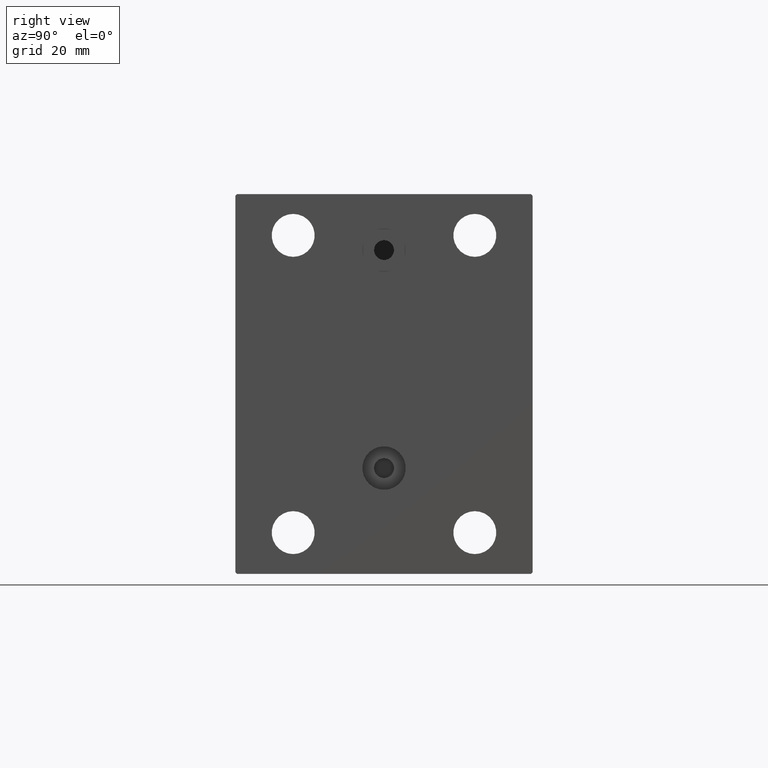
[diagram: clean part render]
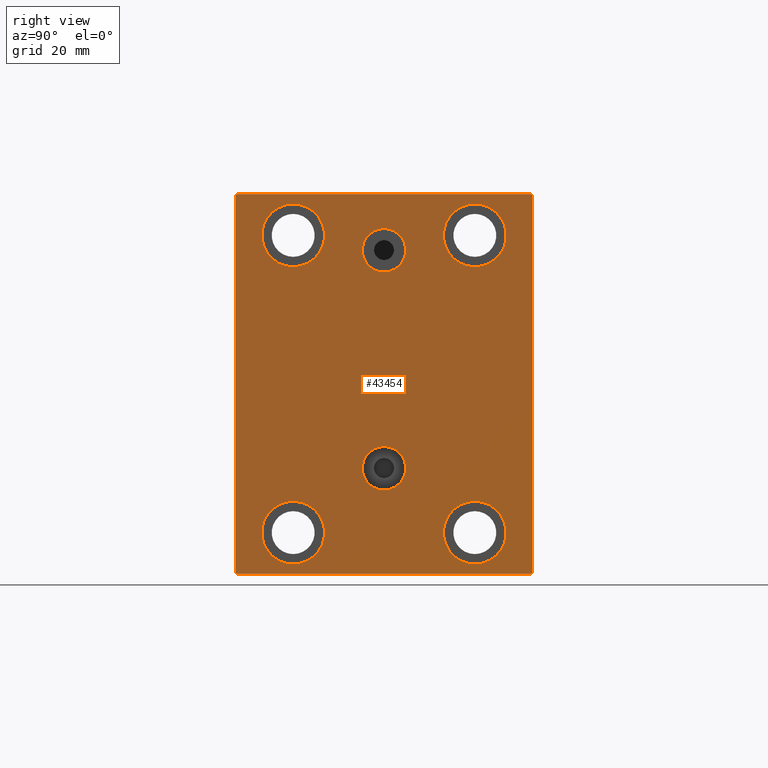
[diagram: same view with one face highlighted and labeled with its STEP entity id]
A machine part, right view. The second image highlights one B-rep face of the part: STEP entity #43454.
In plain terms, the highlighted planar face has unit normal (1, 0, 0).
Its self-contained STEP definition (entity closure, byte-faithful):
#456 = DIRECTION ( 'NONE',  ( 0.000000000000000000, -1.206764157201257045E-16, 1.000000000000000000 ) ) ;
#497 = DIRECTION ( 'NONE',  ( 0.000000000000000000, -1.000000000000000000, -1.541976423090495387E-16 ) ) ;
#570 = CARTESIAN_POINT ( 'NONE',  ( 108.0000000000000000, -27.49999999999998934, 54.50000000000000711 ) ) ;
#576 = DIRECTION ( 'NONE',  ( 0.000000000000000000, 0.000000000000000000, 1.000000000000000000 ) ) ;
#641 = ORIENTED_EDGE ( 'NONE', *, *, #44868, .F. ) ;
#645 = VERTEX_POINT ( 'NONE', #18208 ) ;
#753 = VERTEX_POINT ( 'NONE', #23050 ) ;
#895 = EDGE_LOOP ( 'NONE', ( #7942, #641 ) ) ;
#1068 = DIRECTION ( 'NONE',  ( 1.000000000000000000, 0.000000000000000000, 0.000000000000000000 ) ) ;
#1218 = DIRECTION ( 'NONE',  ( -1.000000000000000000, -0.000000000000000000, -0.000000000000000000 ) ) ;
#1299 = FACE_BOUND ( 'NONE', #39541, .T. ) ;
#1367 = CIRCLE ( 'NONE', #18997, 9.500000000000001776 ) ;
#1889 = DIRECTION ( 'NONE',  ( 0.000000000000000000, 0.000000000000000000, 1.000000000000000000 ) ) ;
#1948 = VECTOR ( 'NONE', #28390, 1000.000000000000114 ) ;
#1950 = EDGE_CURVE ( 'NONE', #645, #24250, #24117, .T. ) ;
#2202 = DIRECTION ( 'NONE',  ( 0.000000000000000000, 0.000000000000000000, 1.000000000000000000 ) ) ;
#2271 = DIRECTION ( 'NONE',  ( -1.000000000000000000, -0.000000000000000000, -0.000000000000000000 ) ) ;
#2356 = EDGE_CURVE ( 'NONE', #14809, #14537, #29507, .T. ) ;
#2551 = CARTESIAN_POINT ( 'NONE',  ( 108.0000000000000000, 51.00000000000001421, 51.00000000000001421 ) ) ;
#3495 = LINE ( 'NONE', #7863, #23795 ) ;
#4008 = EDGE_CURVE ( 'NONE', #39232, #33253, #9750, .T. ) ;
#5801 = CARTESIAN_POINT ( 'NONE',  ( 108.0000000000000000, 27.49999999999998934, -54.49999999999998579 ) ) ;
#5891 = EDGE_CURVE ( 'NONE', #33158, #7571, #42864, .T. ) ;
#5981 = CARTESIAN_POINT ( 'NONE',  ( 108.0000000000000000, 3.928666931664708475E-15, -18.91999999999999105 ) ) ;
#6065 = DIRECTION ( 'NONE',  ( -1.000000000000000000, -0.000000000000000000, -0.000000000000000000 ) ) ;
#6129 = CIRCLE ( 'NONE', #6837, 9.500000000000001776 ) ;
#6207 = VECTOR ( 'NONE', #38619, 1000.000000000000114 ) ;
#6417 = DIRECTION ( 'NONE',  ( 0.000000000000000000, 0.000000000000000000, 1.000000000000000000 ) ) ;
#6531 = ORIENTED_EDGE ( 'NONE', *, *, #44164, .T. ) ;
#6837 = AXIS2_PLACEMENT_3D ( 'NONE', #37485, #16975, #6417 ) ;
#6900 = AXIS2_PLACEMENT_3D ( 'NONE', #18918, #1218, #36639 ) ;
#7288 = CARTESIAN_POINT ( 'NONE',  ( 108.0000000000000000, -4.500599556835684736E-15, 47.08000000000001251 ) ) ;
#7292 = DIRECTION ( 'NONE',  ( -1.000000000000000000, -0.000000000000000000, -0.000000000000000000 ) ) ;
#7571 = VERTEX_POINT ( 'NONE', #19857 ) ;
#7605 = EDGE_CURVE ( 'NONE', #36578, #24544, #3495, .T. ) ;
#7863 = CARTESIAN_POINT ( 'NONE',  ( 108.0000000000000000, 45.00000000000000000, 57.50000000000000711 ) ) ;
#7942 = ORIENTED_EDGE ( 'NONE', *, *, #2356, .F. ) ;
#8022 = AXIS2_PLACEMENT_3D ( 'NONE', #27954, #24292, #20828 ) ;
#8201 = CARTESIAN_POINT ( 'NONE',  ( 108.0000000000000000, 27.49999999999998934, -35.49999999999998579 ) ) ;
#8974 = ORIENTED_EDGE ( 'NONE', *, *, #18144, .T. ) ;
#9279 = LINE ( 'NONE', #44008, #13556 ) ;
#9361 = EDGE_CURVE ( 'NONE', #753, #42917, #23690, .T. ) ;
#9588 = CARTESIAN_POINT ( 'NONE',  ( 108.0000000000000000, 3.122849337825749828E-15, -25.49999999999999645 ) ) ;
#9750 = CIRCLE ( 'NONE', #31754, 9.500000000000001776 ) ;
#9950 = ORIENTED_EDGE ( 'NONE', *, *, #10577, .T. ) ;
#10434 = ORIENTED_EDGE ( 'NONE', *, *, #43075, .T. ) ;
#10544 = CARTESIAN_POINT ( 'NONE',  ( 108.0000000000000000, 51.00000000000001421, -51.00000000000001421 ) ) ;
#10577 = EDGE_CURVE ( 'NONE', #10808, #28229, #18591, .T. ) ;
#10645 = ORIENTED_EDGE ( 'NONE', *, *, #24798, .T. ) ;
#10808 = VERTEX_POINT ( 'NONE', #15490 ) ;
#11245 = LINE ( 'NONE', #36344, #34201 ) ;
#11402 = FACE_BOUND ( 'NONE', #37550, .T. ) ;
#11639 = DIRECTION ( 'NONE',  ( 0.000000000000000000, 0.000000000000000000, 1.000000000000000000 ) ) ;
#11698 = DIRECTION ( 'NONE',  ( -1.000000000000000000, -0.000000000000000000, -0.000000000000000000 ) ) ;
#12011 = CARTESIAN_POINT ( 'NONE',  ( 108.0000000000000000, 45.00000000000001421, -57.00000000000003553 ) ) ;
#12089 = FACE_OUTER_BOUND ( 'NONE', #16557, .T. ) ;
#12471 = CARTESIAN_POINT ( 'NONE',  ( 108.0000000000000000, 27.50000000000001066, 54.50000000000000711 ) ) ;
#12891 = ORIENTED_EDGE ( 'NONE', *, *, #16455, .T. ) ;
#13036 = VERTEX_POINT ( 'NONE', #43703 ) ;
#13067 = DIRECTION ( 'NONE',  ( 1.000000000000000000, 0.000000000000000000, 0.000000000000000000 ) ) ;
#13155 = DIRECTION ( 'NONE',  ( -0.000000000000000000, 0.7071067811865474617, -0.7071067811865474617 ) ) ;
#13350 = VECTOR ( 'NONE', #20648, 1000.000000000000000 ) ;
#13361 = EDGE_LOOP ( 'NONE', ( #40869, #43401 ) ) ;
#13419 = CARTESIAN_POINT ( 'NONE',  ( 108.0000000000000000, -45.00000000000000000, -57.00000000000003553 ) ) ;
#13556 = VECTOR ( 'NONE', #13155, 1000.000000000000114 ) ;
#14537 = VERTEX_POINT ( 'NONE', #5981 ) ;
#14690 = CARTESIAN_POINT ( 'NONE',  ( 108.0000000000000000, 27.49999999999998934, -44.99999999999998579 ) ) ;
#14767 = ORIENTED_EDGE ( 'NONE', *, *, #45148, .F. ) ;
#14809 = VERTEX_POINT ( 'NONE', #41553 ) ;
#14930 = ORIENTED_EDGE ( 'NONE', *, *, #7605, .T. ) ;
#15490 = CARTESIAN_POINT ( 'NONE',  ( 108.0000000000000000, -27.50000000000000000, -35.49999999999998579 ) ) ;
#15539 = FACE_BOUND ( 'NONE', #13361, .T. ) ;
#15662 = CARTESIAN_POINT ( 'NONE',  ( 108.0000000000000000, 3.122849337825749828E-15, -25.49999999999999645 ) ) ;
#16157 = DIRECTION ( 'NONE',  ( 0.000000000000000000, 0.000000000000000000, -1.000000000000000000 ) ) ;
#16455 = EDGE_CURVE ( 'NONE', #33253, #39232, #23921, .T. ) ;
#16494 = AXIS2_PLACEMENT_3D ( 'NONE', #39255, #1068, #40176 ) ;
#16557 = EDGE_LOOP ( 'NONE', ( #14930, #8974, #40044, #10434, #40667, #38915, #19902, #6531 ) ) ;
#16975 = DIRECTION ( 'NONE',  ( -1.000000000000000000, -0.000000000000000000, -0.000000000000000000 ) ) ;
#17201 = CIRCLE ( 'NONE', #6900, 9.500000000000001776 ) ;
#17357 = EDGE_CURVE ( 'NONE', #42917, #13036, #11245, .T. ) ;
#18144 = EDGE_CURVE ( 'NONE', #24544, #645, #36225, .T. ) ;
#18208 = CARTESIAN_POINT ( 'NONE',  ( 108.0000000000000000, -45.00000000000000000, 56.99999999999999289 ) ) ;
#18237 = VERTEX_POINT ( 'NONE', #23338 ) ;
#18591 = CIRCLE ( 'NONE', #39189, 9.500000000000001776 ) ;
#18742 = CARTESIAN_POINT ( 'NONE',  ( 108.0000000000000000, -51.00000000000000000, 51.00000000000000000 ) ) ;
#18918 = CARTESIAN_POINT ( 'NONE',  ( 108.0000000000000000, -27.49999999999998934, 45.00000000000000711 ) ) ;
#18997 = AXIS2_PLACEMENT_3D ( 'NONE', #37163, #29803, #2202 ) ;
#19285 = CARTESIAN_POINT ( 'NONE',  ( 108.0000000000000000, -5.306417150674643778E-15, 40.50000000000000711 ) ) ;
#19483 = AXIS2_PLACEMENT_3D ( 'NONE', #19285, #13067, #33559 ) ;
#19580 = DIRECTION ( 'NONE',  ( 1.000000000000000000, 0.000000000000000000, -0.000000000000000000 ) ) ;
#19688 = AXIS2_PLACEMENT_3D ( 'NONE', #33893, #6065, #31108 ) ;
#19744 = CARTESIAN_POINT ( 'NONE',  ( 108.0000000000000000, 27.49999999999998934, -44.99999999999998579 ) ) ;
#19857 = CARTESIAN_POINT ( 'NONE',  ( 108.0000000000000000, -5.306417150674643778E-15, 33.92000000000000881 ) ) ;
#19902 = ORIENTED_EDGE ( 'NONE', *, *, #17357, .T. ) ;
#20014 = LINE ( 'NONE', #2551, #24594 ) ;
#20434 = ORIENTED_EDGE ( 'NONE', *, *, #4008, .T. ) ;
#20648 = DIRECTION ( 'NONE',  ( 0.000000000000000000, 0.000000000000000000, -1.000000000000000000 ) ) ;
#20828 = DIRECTION ( 'NONE',  ( 0.000000000000000000, 0.000000000000000000, 1.000000000000000000 ) ) ;
#20896 = EDGE_CURVE ( 'NONE', #18237, #753, #23197, .T. ) ;
#21371 = EDGE_LOOP ( 'NONE', ( #10645, #9950 ) ) ;
#21961 = DIRECTION ( 'NONE',  ( 1.000000000000000000, 0.000000000000000000, -0.000000000000000000 ) ) ;
#22220 = EDGE_CURVE ( 'NONE', #45283, #38988, #39520, .T. ) ;
#23050 = CARTESIAN_POINT ( 'NONE',  ( 108.0000000000000000, 44.50000000000001421, -57.50000000000000711 ) ) ;
#23197 = LINE ( 'NONE', #37224, #34299 ) ;
#23338 = CARTESIAN_POINT ( 'NONE',  ( 108.0000000000000000, -44.50000000000002842, -57.50000000000000711 ) ) ;
#23690 = LINE ( 'NONE', #10544, #6207 ) ;
#23795 = VECTOR ( 'NONE', #497, 1000.000000000000000 ) ;
#23921 = CIRCLE ( 'NONE', #34911, 9.500000000000001776 ) ;
#24117 = LINE ( 'NONE', #45280, #13350 ) ;
#24250 = VERTEX_POINT ( 'NONE', #13419 ) ;
#24292 = DIRECTION ( 'NONE',  ( -1.000000000000000000, -0.000000000000000000, -0.000000000000000000 ) ) ;
#24521 = CARTESIAN_POINT ( 'NONE',  ( 108.0000000000000000, -44.49999999999997158, 57.49999999999999289 ) ) ;
#24544 = VERTEX_POINT ( 'NONE', #24521 ) ;
#24594 = VECTOR ( 'NONE', #40062, 1000.000000000000114 ) ;
#24798 = EDGE_CURVE ( 'NONE', #28229, #10808, #1367, .T. ) ;
#25219 = FACE_BOUND ( 'NONE', #21371, .T. ) ;
#25674 = FACE_BOUND ( 'NONE', #895, .T. ) ;
#26097 = CIRCLE ( 'NONE', #40816, 6.580000000000002736 ) ;
#26140 = PLANE ( 'NONE',  #16494 ) ;
#26427 = DIRECTION ( 'NONE',  ( 0.000000000000000000, 0.000000000000000000, 1.000000000000000000 ) ) ;
#27767 = CARTESIAN_POINT ( 'NONE',  ( 108.0000000000000000, -27.49999999999998934, 35.50000000000000711 ) ) ;
#27954 = CARTESIAN_POINT ( 'NONE',  ( 108.0000000000000000, 27.50000000000001066, 45.00000000000000711 ) ) ;
#28229 = VERTEX_POINT ( 'NONE', #33360 ) ;
#28258 = CIRCLE ( 'NONE', #19483, 6.580000000000002736 ) ;
#28390 = DIRECTION ( 'NONE',  ( 0.000000000000000000, -0.7071067811865474617, -0.7071067811865474617 ) ) ;
#29507 = CIRCLE ( 'NONE', #34665, 6.580000000000002736 ) ;
#29803 = DIRECTION ( 'NONE',  ( -1.000000000000000000, -0.000000000000000000, -0.000000000000000000 ) ) ;
#30022 = EDGE_CURVE ( 'NONE', #43073, #30519, #43295, .T. ) ;
#30519 = VERTEX_POINT ( 'NONE', #44854 ) ;
#31108 = DIRECTION ( 'NONE',  ( 0.000000000000000000, 0.000000000000000000, 1.000000000000000000 ) ) ;
#31754 = AXIS2_PLACEMENT_3D ( 'NONE', #19744, #2271, #26427 ) ;
#31826 = AXIS2_PLACEMENT_3D ( 'NONE', #41446, #37105, #16157 ) ;
#32684 = ORIENTED_EDGE ( 'NONE', *, *, #39624, .T. ) ;
#33158 = VERTEX_POINT ( 'NONE', #7288 ) ;
#33253 = VERTEX_POINT ( 'NONE', #8201 ) ;
#33360 = CARTESIAN_POINT ( 'NONE',  ( 108.0000000000000000, -27.50000000000000000, -54.49999999999998579 ) ) ;
#33559 = DIRECTION ( 'NONE',  ( 0.000000000000000000, 0.000000000000000000, -1.000000000000000000 ) ) ;
#33766 = DIRECTION ( 'NONE',  ( 0.000000000000000000, 1.000000000000000000, 0.000000000000000000 ) ) ;
#33893 = CARTESIAN_POINT ( 'NONE',  ( 108.0000000000000000, -27.49999999999998934, 45.00000000000000711 ) ) ;
#34201 = VECTOR ( 'NONE', #456, 1000.000000000000000 ) ;
#34299 = VECTOR ( 'NONE', #33766, 1000.000000000000000 ) ;
#34665 = AXIS2_PLACEMENT_3D ( 'NONE', #9588, #21961, #576 ) ;
#34911 = AXIS2_PLACEMENT_3D ( 'NONE', #14690, #11698, #43458 ) ;
#35731 = CARTESIAN_POINT ( 'NONE',  ( 108.0000000000000000, 44.50000000000002842, 57.50000000000000711 ) ) ;
#36225 = LINE ( 'NONE', #18742, #1948 ) ;
#36344 = CARTESIAN_POINT ( 'NONE',  ( 108.0000000000000000, 45.00000000000001421, -57.50000000000000711 ) ) ;
#36524 = ORIENTED_EDGE ( 'NONE', *, *, #30022, .T. ) ;
#36578 = VERTEX_POINT ( 'NONE', #35731 ) ;
#36639 = DIRECTION ( 'NONE',  ( 0.000000000000000000, 0.000000000000000000, 1.000000000000000000 ) ) ;
#37105 = DIRECTION ( 'NONE',  ( 1.000000000000000000, 0.000000000000000000, 0.000000000000000000 ) ) ;
#37163 = CARTESIAN_POINT ( 'NONE',  ( 108.0000000000000000, -27.50000000000000000, -44.99999999999998579 ) ) ;
#37224 = CARTESIAN_POINT ( 'NONE',  ( 108.0000000000000000, -45.00000000000000000, -57.50000000000000711 ) ) ;
#37485 = CARTESIAN_POINT ( 'NONE',  ( 108.0000000000000000, 27.50000000000001066, 45.00000000000000711 ) ) ;
#37550 = EDGE_LOOP ( 'NONE', ( #14767, #37945 ) ) ;
#37945 = ORIENTED_EDGE ( 'NONE', *, *, #5891, .F. ) ;
#38619 = DIRECTION ( 'NONE',  ( -0.000000000000000000, 0.7071067811865474617, 0.7071067811865474617 ) ) ;
#38915 = ORIENTED_EDGE ( 'NONE', *, *, #9361, .T. ) ;
#38988 = VERTEX_POINT ( 'NONE', #570 ) ;
#39189 = AXIS2_PLACEMENT_3D ( 'NONE', #39264, #7292, #11639 ) ;
#39232 = VERTEX_POINT ( 'NONE', #5801 ) ;
#39255 = CARTESIAN_POINT ( 'NONE',  ( 108.0000000000000000, 0.000000000000000000, 0.000000000000000000 ) ) ;
#39264 = CARTESIAN_POINT ( 'NONE',  ( 108.0000000000000000, -27.50000000000000000, -44.99999999999998579 ) ) ;
#39520 = CIRCLE ( 'NONE', #19688, 9.500000000000001776 ) ;
#39541 = EDGE_LOOP ( 'NONE', ( #20434, #12891 ) ) ;
#39624 = EDGE_CURVE ( 'NONE', #30519, #43073, #6129, .T. ) ;
#40044 = ORIENTED_EDGE ( 'NONE', *, *, #1950, .T. ) ;
#40062 = DIRECTION ( 'NONE',  ( -0.000000000000000000, -0.7071067811865474617, 0.7071067811865474617 ) ) ;
#40176 = DIRECTION ( 'NONE',  ( 0.000000000000000000, 0.000000000000000000, -1.000000000000000000 ) ) ;
#40667 = ORIENTED_EDGE ( 'NONE', *, *, #20896, .T. ) ;
#40816 = AXIS2_PLACEMENT_3D ( 'NONE', #15662, #19580, #1889 ) ;
#40869 = ORIENTED_EDGE ( 'NONE', *, *, #22220, .T. ) ;
#41446 = CARTESIAN_POINT ( 'NONE',  ( 108.0000000000000000, -5.306417150674643778E-15, 40.50000000000000711 ) ) ;
#41553 = CARTESIAN_POINT ( 'NONE',  ( 108.0000000000000000, 3.122849337825749828E-15, -32.07999999999999829 ) ) ;
#42305 = EDGE_CURVE ( 'NONE', #38988, #45283, #17201, .T. ) ;
#42864 = CIRCLE ( 'NONE', #31826, 6.580000000000002736 ) ;
#42917 = VERTEX_POINT ( 'NONE', #12011 ) ;
#43073 = VERTEX_POINT ( 'NONE', #12471 ) ;
#43075 = EDGE_CURVE ( 'NONE', #24250, #18237, #9279, .T. ) ;
#43295 = CIRCLE ( 'NONE', #8022, 9.500000000000001776 ) ;
#43401 = ORIENTED_EDGE ( 'NONE', *, *, #42305, .T. ) ;
#43454 = ADVANCED_FACE ( 'NONE', ( #11402, #25674, #1299, #15539, #43854, #25219, #12089 ), #26140, .T. ) ;
#43458 = DIRECTION ( 'NONE',  ( 0.000000000000000000, 0.000000000000000000, 1.000000000000000000 ) ) ;
#43490 = EDGE_LOOP ( 'NONE', ( #32684, #36524 ) ) ;
#43703 = CARTESIAN_POINT ( 'NONE',  ( 108.0000000000000000, 45.00000000000000000, 57.00000000000000711 ) ) ;
#43854 = FACE_BOUND ( 'NONE', #43490, .T. ) ;
#44008 = CARTESIAN_POINT ( 'NONE',  ( 108.0000000000000000, -51.00000000000001421, -51.00000000000001421 ) ) ;
#44164 = EDGE_CURVE ( 'NONE', #13036, #36578, #20014, .T. ) ;
#44854 = CARTESIAN_POINT ( 'NONE',  ( 108.0000000000000000, 27.50000000000001066, 35.50000000000000711 ) ) ;
#44868 = EDGE_CURVE ( 'NONE', #14537, #14809, #26097, .T. ) ;
#45148 = EDGE_CURVE ( 'NONE', #7571, #33158, #28258, .T. ) ;
#45280 = CARTESIAN_POINT ( 'NONE',  ( 108.0000000000000000, -45.00000000000000000, 57.49999999999999289 ) ) ;
#45283 = VERTEX_POINT ( 'NONE', #27767 ) ;